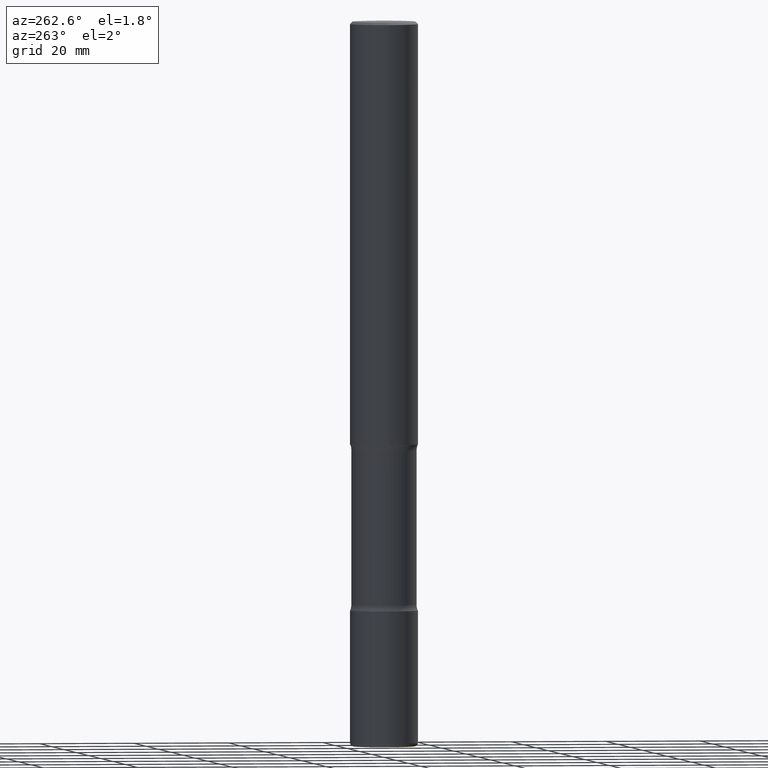
[diagram: clean part render]
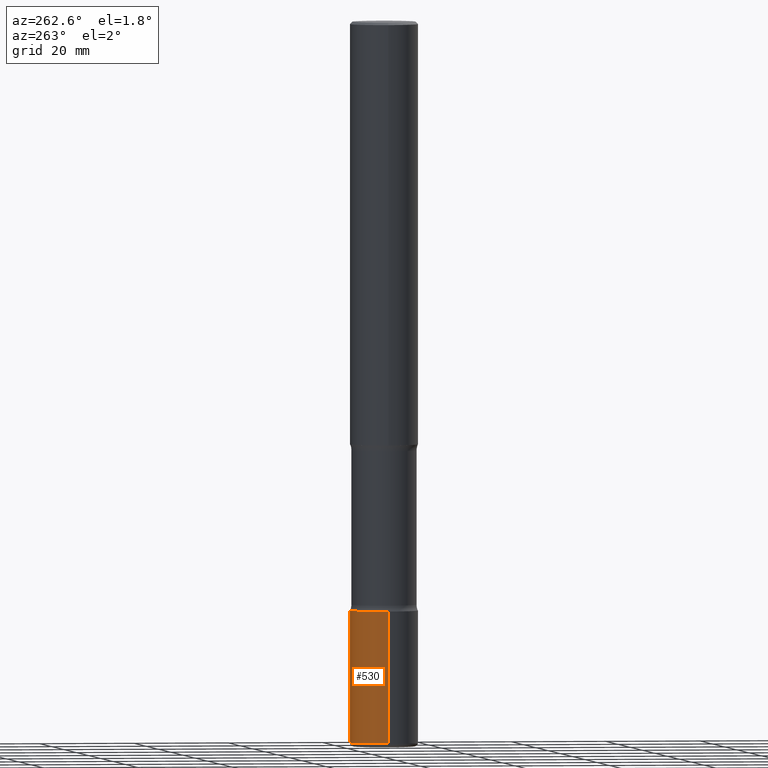
[diagram: same view with one face highlighted and labeled with its STEP entity id]
A machine part, auxiliary view. The second image highlights one B-rep face of the part: STEP entity #530.
In plain terms, the highlighted cylindrical surface (edge-blend (fillet) strip) has radius 7.1438 mm, axis along (-0, 0, 1).
Its self-contained STEP definition (entity closure, byte-faithful):
#2 = EDGE_CURVE ( 'NONE', #162, #154, #174, .T. ) ;
#11 = CARTESIAN_POINT ( 'NONE',  ( -0.2812500000000003886, 1.998401444325284534E-15, -1.383450494134194230E-29 ) ) ;
#20 = AXIS2_PLACEMENT_3D ( 'NONE', #102, #144, #106 ) ;
#23 = CARTESIAN_POINT ( 'NONE',  ( 0.2812500000000003886, -1.963958253099265273E-15, 1.371424718192608693E-29 ) ) ;
#24 = VERTEX_POINT ( 'NONE', #170 ) ;
#26 = DIRECTION ( 'NONE',  ( -2.445468806185136597E-29, 3.491481338843145583E-15, 1.000000000000000000 ) ) ;
#51 = ORIENTED_EDGE ( 'NONE', *, *, #76, .T. ) ;
#60 = VERTEX_POINT ( 'NONE', #198 ) ;
#61 = CARTESIAN_POINT ( 'NONE',  ( 0.000000000000000000, 0.000000000000000000, 0.000000000000000000 ) ) ;
#76 = EDGE_CURVE ( 'NONE', #154, #24, #400, .T. ) ;
#85 = CIRCLE ( 'NONE', #20, 0.2812500000000003331 ) ;
#102 = CARTESIAN_POINT ( 'NONE',  ( 1.192166043015254091E-28, -1.702097152686033664E-14, -4.875000000000000000 ) ) ;
#106 = DIRECTION ( 'NONE',  ( 1.000000000000000000, -6.982962677686268288E-15, 0.000000000000000000 ) ) ;
#114 = DIRECTION ( 'NONE',  ( 1.000000000000000000, -6.982962677686266711E-15, 4.876176775795935232E-29 ) ) ;
#122 = CARTESIAN_POINT ( 'NONE',  ( 1.459944877292526494E-28, -2.084414359289357934E-14, -5.969999999999999751 ) ) ;
#137 = ORIENTED_EDGE ( 'NONE', *, *, #388, .F. ) ;
#144 = DIRECTION ( 'NONE',  ( -2.445468806185136597E-29, 3.491481338843145583E-15, 1.000000000000000000 ) ) ;
#154 = VERTEX_POINT ( 'NONE', #260 ) ;
#162 = VERTEX_POINT ( 'NONE', #303 ) ;
#170 = CARTESIAN_POINT ( 'NONE',  ( -0.2812500000000003331, -1.693415611555167306E-14, -4.875000000000000000 ) ) ;
#174 = CIRCLE ( 'NONE', #350, 0.2812500000000004441 ) ;
#198 = CARTESIAN_POINT ( 'NONE',  ( 0.2812500000000003331, -1.898492977995960152E-14, -4.875000000000000000 ) ) ;
#209 = VECTOR ( 'NONE', #497, 39.37007874015748143 ) ;
#247 = DIRECTION ( 'NONE',  ( -2.445468806185136597E-29, 3.491481338843145583E-15, 1.000000000000000000 ) ) ;
#260 = CARTESIAN_POINT ( 'NONE',  ( -0.2812500000000005551, -1.884574214856829125E-14, -5.969999999999999751 ) ) ;
#286 = CYLINDRICAL_SURFACE ( 'NONE', #386, 0.2812500000000003886 ) ;
#294 = EDGE_LOOP ( 'NONE', ( #417, #51, #137, #498 ) ) ;
#303 = CARTESIAN_POINT ( 'NONE',  ( 0.2812500000000005551, -2.280810184599284737E-14, -5.969999999999999751 ) ) ;
#323 = FACE_OUTER_BOUND ( 'NONE', #294, .T. ) ;
#350 = AXIS2_PLACEMENT_3D ( 'NONE', #122, #247, #403 ) ;
#377 = DIRECTION ( 'NONE',  ( -2.445468806185136877E-29, 3.491481338843145188E-15, 1.000000000000000000 ) ) ;
#386 = AXIS2_PLACEMENT_3D ( 'NONE', #61, #26, #114 ) ;
#388 = EDGE_CURVE ( 'NONE', #60, #24, #85, .T. ) ;
#400 = LINE ( 'NONE', #11, #529 ) ;
#403 = DIRECTION ( 'NONE',  ( 1.000000000000000000, -6.982962677686265133E-15, 0.000000000000000000 ) ) ;
#417 = ORIENTED_EDGE ( 'NONE', *, *, #2, .T. ) ;
#497 = DIRECTION ( 'NONE',  ( -2.445468806185136877E-29, 3.491481338843145188E-15, 1.000000000000000000 ) ) ;
#498 = ORIENTED_EDGE ( 'NONE', *, *, #508, .F. ) ;
#508 = EDGE_CURVE ( 'NONE', #162, #60, #543, .T. ) ;
#529 = VECTOR ( 'NONE', #377, 39.37007874015748143 ) ;
#530 = ADVANCED_FACE ( 'NONE', ( #323 ), #286, .T. ) ;
#543 = LINE ( 'NONE', #23, #209 ) ;